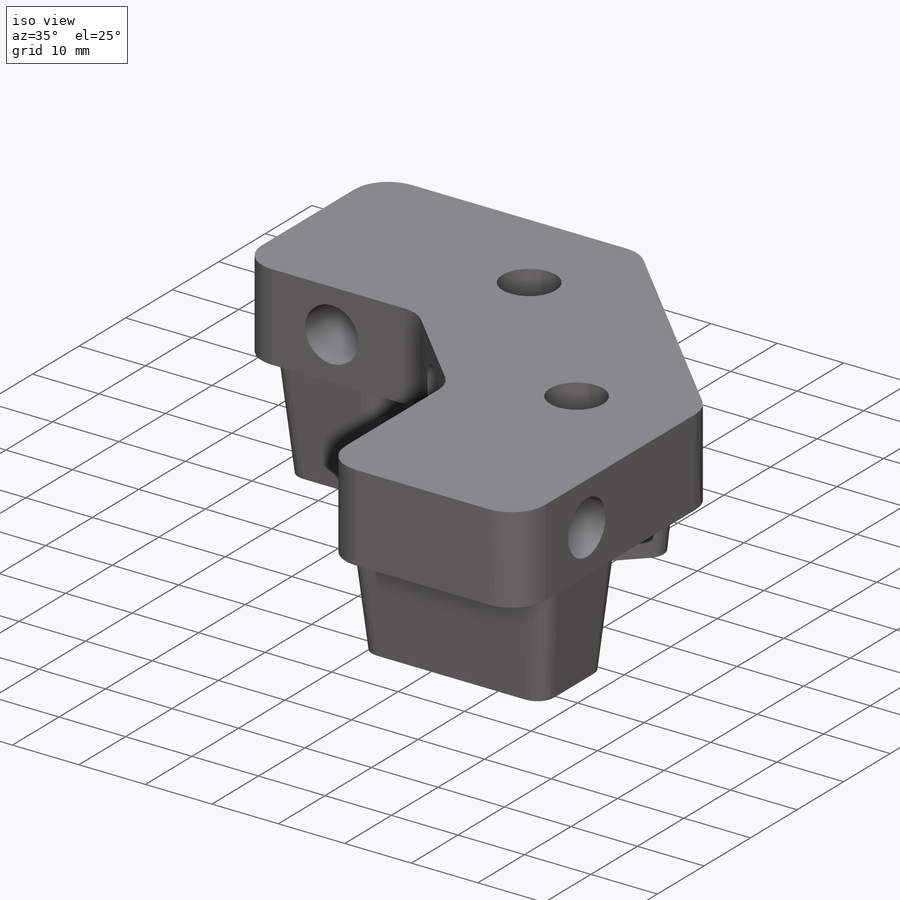
[diagram: iso view]
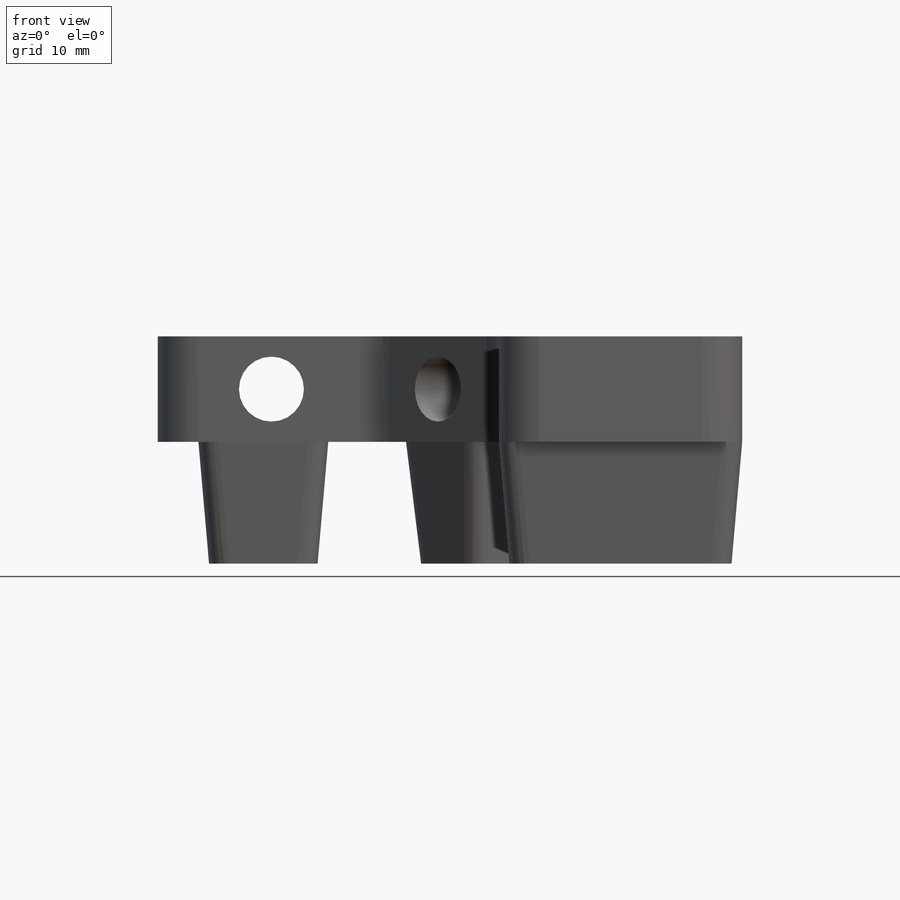
[diagram: front view]
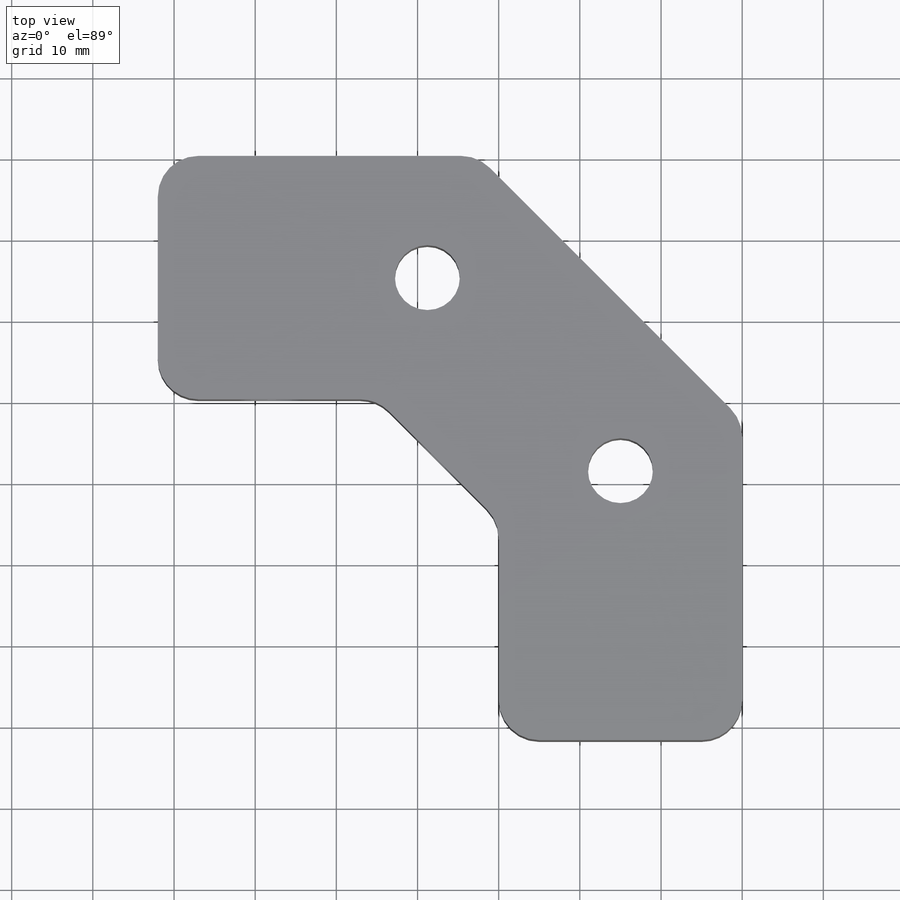
[diagram: top view]
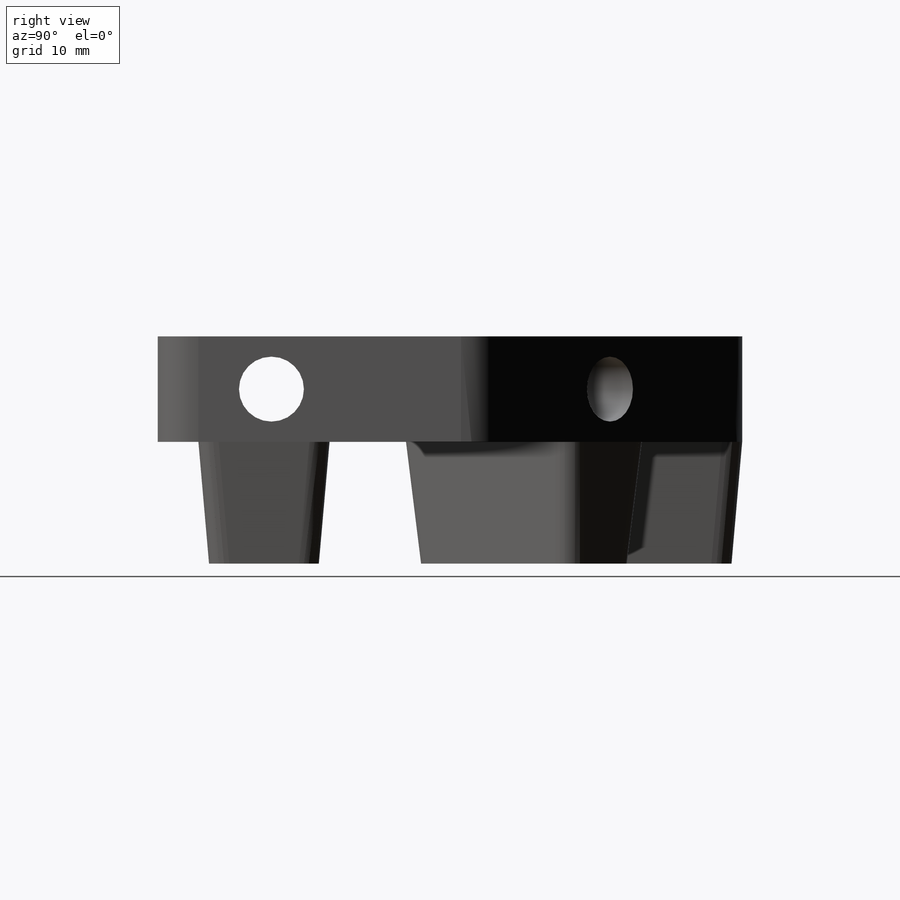
[diagram: right view]
SOLIDWORKS PART (.sldprt)
format: sldprt  version: not decoded by parser v0  size: 242,688 bytes
history: native  units: mm
features: sketch x5, cut_extrude x3, extrude x2, fillet x2, material x1 (+16 scaffold rows collapsed)
feature tree (29):
  scaffold x16  (default folders/planes/origin — collapsed)
  material  "Material <not specified>"
  sketch  "Sketch1"  dims[D1=30.0mm]
  extrude  "Extrude1"  Depth=13mm
  fillet  "Fillet5"  Radius=5mm
  sketch  "Sketch5"  dims[D1=~1.618242mm]
  cut_extrude  "Extrude5"  Depth=30mm
  sketch  "Sketch6"  dims[D1=9.0mm]
  cut_extrude  "Extrude6"  Depth=30mm
  sketch  "Sketch8"  dims[D1=9.0mm]
  cut_extrude  "Extrude7"  Depth=30mm
  sketch  "Sketch9"  dims[D1=~16.17767mm]
  extrude  "Extrude8"  Depth=15mm
  fillet  "Fillet8"  Radius=2.5mm
decode coverage: 12 of 12 modeling features carry decoded parameters
note: ~ marks probable driven/reference dimensions
note: suppression state not decoded; provenance and decode notes live in map.json
